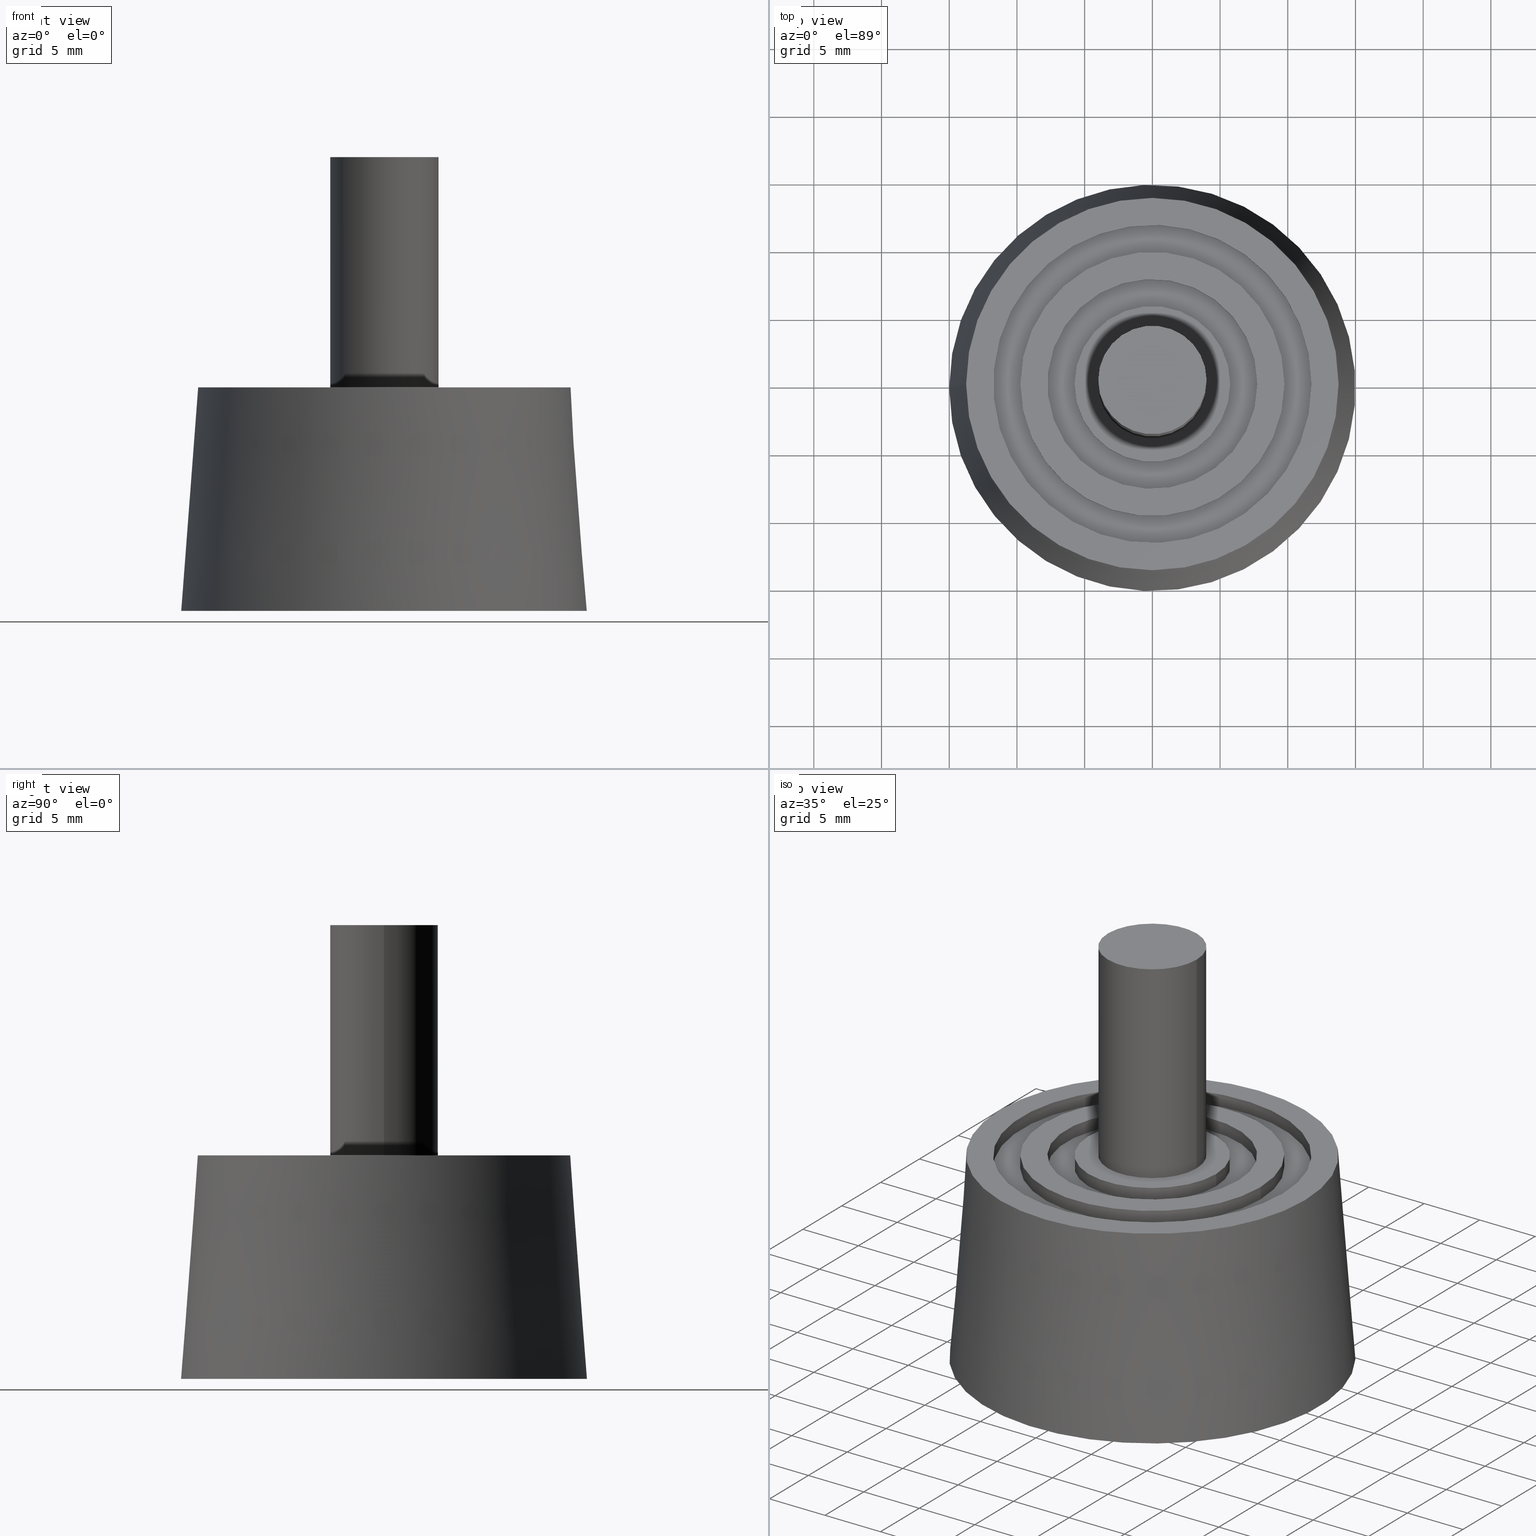
[diagram: canonical four-view strip — front | top / right | iso, engineering-drawing reading convention]
A machine part, canonical four-view strip (front | top / right | iso — engineering-drawing reading convention). The complete STEP part file that produces these views, byte-faithful:
ISO-10303-21;
HEADER;
/* Generated by software containing ST-Developer
 * from STEP Tools, Inc. (www.steptools.com) 
 */

FILE_DESCRIPTION(
/* description */ (''),
/* implementation_level */ '2;1');

FILE_NAME(
/* name */ '\\\\SYNOLOGYNAS\\web\\db2\\PRM8-1\\\X2\B3C4BA74\X0\\\DR_PR
M8-1.stp',
/* time_stamp */ '2023-02-01T16:47:05+09:00',
/* author */ ('user'),
/* organization */ (''),
/* preprocessor_version */ 'ST-DEVELOPER v15.6',
/* originating_system */ 'Autodesk Inventor 2015',
/* authorisation */ '');

FILE_SCHEMA (('AUTOMOTIVE_DESIGN { 1 0 10303 214 3 1 1 }'));
ENDSEC;

DATA;
#10=MECHANICAL_DESIGN_GEOMETRIC_PRESENTATION_REPRESENTATION('',(#13),#469);
#11=SHAPE_REPRESENTATION_RELATIONSHIP('SRR','None',#478,#12);
#12=ADVANCED_BREP_SHAPE_REPRESENTATION($,(#14),#468);
#13=STYLED_ITEM('',(#487),#14);
#14=MANIFOLD_SOLID_BREP('\X2\C194B9ACB4DC\X0\1',#259);
#15=CONICAL_SURFACE('',#305,15.,4.33231398318852);
#16=PLANE('',#264);
#17=PLANE('',#271);
#18=PLANE('',#278);
#19=PLANE('',#282);
#20=PLANE('',#283);
#21=PLANE('',#284);
#22=PLANE('',#292);
#23=PLANE('',#299);
#24=PLANE('',#300);
#25=PLANE('',#302);
#26=PLANE('',#303);
#27=PLANE('',#304);
#28=FACE_BOUND('',#73,.T.);
#29=FACE_BOUND('',#76,.T.);
#30=FACE_BOUND('',#78,.T.);
#31=FACE_BOUND('',#80,.T.);
#32=FACE_BOUND('',#82,.T.);
#33=FACE_BOUND('',#84,.T.);
#34=FACE_BOUND('',#86,.T.);
#35=FACE_BOUND('',#88,.T.);
#36=FACE_BOUND('',#91,.T.);
#37=FACE_BOUND('',#93,.T.);
#38=FACE_BOUND('',#95,.T.);
#39=FACE_BOUND('',#97,.T.);
#40=FACE_BOUND('',#99,.T.);
#41=FACE_BOUND('',#101,.T.);
#42=FACE_BOUND('',#103,.T.);
#43=FACE_BOUND('',#105,.T.);
#44=FACE_BOUND('',#107,.T.);
#45=FACE_BOUND('',#109,.T.);
#46=FACE_BOUND('',#111,.T.);
#47=FACE_BOUND('',#113,.T.);
#48=FACE_BOUND('',#115,.T.);
#49=FACE_OUTER_BOUND('',#72,.T.);
#50=FACE_OUTER_BOUND('',#74,.T.);
#51=FACE_OUTER_BOUND('',#75,.T.);
#52=FACE_OUTER_BOUND('',#77,.T.);
#53=FACE_OUTER_BOUND('',#79,.T.);
#54=FACE_OUTER_BOUND('',#81,.T.);
#55=FACE_OUTER_BOUND('',#83,.T.);
#56=FACE_OUTER_BOUND('',#85,.T.);
#57=FACE_OUTER_BOUND('',#87,.T.);
#58=FACE_OUTER_BOUND('',#89,.T.);
#59=FACE_OUTER_BOUND('',#90,.T.);
#60=FACE_OUTER_BOUND('',#92,.T.);
#61=FACE_OUTER_BOUND('',#94,.T.);
#62=FACE_OUTER_BOUND('',#96,.T.);
#63=FACE_OUTER_BOUND('',#98,.T.);
#64=FACE_OUTER_BOUND('',#100,.T.);
#65=FACE_OUTER_BOUND('',#102,.T.);
#66=FACE_OUTER_BOUND('',#104,.T.);
#67=FACE_OUTER_BOUND('',#106,.T.);
#68=FACE_OUTER_BOUND('',#108,.T.);
#69=FACE_OUTER_BOUND('',#110,.T.);
#70=FACE_OUTER_BOUND('',#112,.T.);
#71=FACE_OUTER_BOUND('',#114,.T.);
#72=EDGE_LOOP('',(#182));
#73=EDGE_LOOP('',(#183));
#74=EDGE_LOOP('',(#184));
#75=EDGE_LOOP('',(#185));
#76=EDGE_LOOP('',(#186));
#77=EDGE_LOOP('',(#187));
#78=EDGE_LOOP('',(#188));
#79=EDGE_LOOP('',(#189));
#80=EDGE_LOOP('',(#190));
#81=EDGE_LOOP('',(#191));
#82=EDGE_LOOP('',(#192));
#83=EDGE_LOOP('',(#193));
#84=EDGE_LOOP('',(#194));
#85=EDGE_LOOP('',(#195));
#86=EDGE_LOOP('',(#196));
#87=EDGE_LOOP('',(#197));
#88=EDGE_LOOP('',(#198));
#89=EDGE_LOOP('',(#199));
#90=EDGE_LOOP('',(#200));
#91=EDGE_LOOP('',(#201));
#92=EDGE_LOOP('',(#202));
#93=EDGE_LOOP('',(#203));
#94=EDGE_LOOP('',(#204));
#95=EDGE_LOOP('',(#205));
#96=EDGE_LOOP('',(#206));
#97=EDGE_LOOP('',(#207));
#98=EDGE_LOOP('',(#208));
#99=EDGE_LOOP('',(#209));
#100=EDGE_LOOP('',(#210));
#101=EDGE_LOOP('',(#211));
#102=EDGE_LOOP('',(#212));
#103=EDGE_LOOP('',(#213));
#104=EDGE_LOOP('',(#214));
#105=EDGE_LOOP('',(#215));
#106=EDGE_LOOP('',(#216));
#107=EDGE_LOOP('',(#217));
#108=EDGE_LOOP('',(#218));
#109=EDGE_LOOP('',(#219));
#110=EDGE_LOOP('',(#220));
#111=EDGE_LOOP('',(#221));
#112=EDGE_LOOP('',(#222));
#113=EDGE_LOOP('',(#223));
#114=EDGE_LOOP('',(#224));
#115=EDGE_LOOP('',(#225));
#116=CIRCLE('',#262,4.);
#117=CIRCLE('',#263,4.);
#118=CIRCLE('',#266,11.25);
#119=CIRCLE('',#267,11.25);
#120=CIRCLE('',#269,13.25);
#121=CIRCLE('',#270,13.25);
#122=CIRCLE('',#273,7.25);
#123=CIRCLE('',#274,7.25);
#124=CIRCLE('',#276,9.25);
#125=CIRCLE('',#277,9.25);
#126=CIRCLE('',#280,5.25);
#127=CIRCLE('',#281,5.25);
#128=CIRCLE('',#285,15.);
#129=CIRCLE('',#287,5.75);
#130=CIRCLE('',#288,5.75);
#131=CIRCLE('',#290,7.75);
#132=CIRCLE('',#291,7.75);
#133=CIRCLE('',#294,9.75);
#134=CIRCLE('',#295,9.75);
#135=CIRCLE('',#297,11.75);
#136=CIRCLE('',#298,11.75);
#137=CIRCLE('',#301,13.75);
#138=VERTEX_POINT('',#400);
#139=VERTEX_POINT('',#402);
#140=VERTEX_POINT('',#406);
#141=VERTEX_POINT('',#408);
#142=VERTEX_POINT('',#411);
#143=VERTEX_POINT('',#413);
#144=VERTEX_POINT('',#417);
#145=VERTEX_POINT('',#419);
#146=VERTEX_POINT('',#422);
#147=VERTEX_POINT('',#424);
#148=VERTEX_POINT('',#428);
#149=VERTEX_POINT('',#430);
#150=VERTEX_POINT('',#435);
#151=VERTEX_POINT('',#438);
#152=VERTEX_POINT('',#440);
#153=VERTEX_POINT('',#443);
#154=VERTEX_POINT('',#445);
#155=VERTEX_POINT('',#449);
#156=VERTEX_POINT('',#451);
#157=VERTEX_POINT('',#454);
#158=VERTEX_POINT('',#456);
#159=VERTEX_POINT('',#460);
#160=EDGE_CURVE('',#138,#138,#116,.T.);
#161=EDGE_CURVE('',#139,#139,#117,.T.);
#162=EDGE_CURVE('',#140,#140,#118,.T.);
#163=EDGE_CURVE('',#141,#141,#119,.T.);
#164=EDGE_CURVE('',#142,#142,#120,.T.);
#165=EDGE_CURVE('',#143,#143,#121,.T.);
#166=EDGE_CURVE('',#144,#144,#122,.T.);
#167=EDGE_CURVE('',#145,#145,#123,.T.);
#168=EDGE_CURVE('',#146,#146,#124,.T.);
#169=EDGE_CURVE('',#147,#147,#125,.T.);
#170=EDGE_CURVE('',#148,#148,#126,.T.);
#171=EDGE_CURVE('',#149,#149,#127,.T.);
#172=EDGE_CURVE('',#150,#150,#128,.T.);
#173=EDGE_CURVE('',#151,#151,#129,.T.);
#174=EDGE_CURVE('',#152,#152,#130,.T.);
#175=EDGE_CURVE('',#153,#153,#131,.T.);
#176=EDGE_CURVE('',#154,#154,#132,.T.);
#177=EDGE_CURVE('',#155,#155,#133,.T.);
#178=EDGE_CURVE('',#156,#156,#134,.T.);
#179=EDGE_CURVE('',#157,#157,#135,.T.);
#180=EDGE_CURVE('',#158,#158,#136,.T.);
#181=EDGE_CURVE('',#159,#159,#137,.T.);
#182=ORIENTED_EDGE('',*,*,#160,.F.);
#183=ORIENTED_EDGE('',*,*,#161,.F.);
#184=ORIENTED_EDGE('',*,*,#160,.T.);
#185=ORIENTED_EDGE('',*,*,#162,.T.);
#186=ORIENTED_EDGE('',*,*,#163,.F.);
#187=ORIENTED_EDGE('',*,*,#164,.T.);
#188=ORIENTED_EDGE('',*,*,#165,.F.);
#189=ORIENTED_EDGE('',*,*,#164,.F.);
#190=ORIENTED_EDGE('',*,*,#162,.F.);
#191=ORIENTED_EDGE('',*,*,#166,.T.);
#192=ORIENTED_EDGE('',*,*,#167,.F.);
#193=ORIENTED_EDGE('',*,*,#168,.T.);
#194=ORIENTED_EDGE('',*,*,#169,.F.);
#195=ORIENTED_EDGE('',*,*,#168,.F.);
#196=ORIENTED_EDGE('',*,*,#166,.F.);
#197=ORIENTED_EDGE('',*,*,#170,.T.);
#198=ORIENTED_EDGE('',*,*,#171,.F.);
#199=ORIENTED_EDGE('',*,*,#170,.F.);
#200=ORIENTED_EDGE('',*,*,#163,.T.);
#201=ORIENTED_EDGE('',*,*,#169,.T.);
#202=ORIENTED_EDGE('',*,*,#172,.F.);
#203=ORIENTED_EDGE('',*,*,#165,.T.);
#204=ORIENTED_EDGE('',*,*,#173,.T.);
#205=ORIENTED_EDGE('',*,*,#174,.F.);
#206=ORIENTED_EDGE('',*,*,#175,.T.);
#207=ORIENTED_EDGE('',*,*,#176,.F.);
#208=ORIENTED_EDGE('',*,*,#175,.F.);
#209=ORIENTED_EDGE('',*,*,#173,.F.);
#210=ORIENTED_EDGE('',*,*,#177,.T.);
#211=ORIENTED_EDGE('',*,*,#178,.F.);
#212=ORIENTED_EDGE('',*,*,#179,.T.);
#213=ORIENTED_EDGE('',*,*,#180,.F.);
#214=ORIENTED_EDGE('',*,*,#179,.F.);
#215=ORIENTED_EDGE('',*,*,#177,.F.);
#216=ORIENTED_EDGE('',*,*,#181,.F.);
#217=ORIENTED_EDGE('',*,*,#180,.T.);
#218=ORIENTED_EDGE('',*,*,#178,.T.);
#219=ORIENTED_EDGE('',*,*,#176,.T.);
#220=ORIENTED_EDGE('',*,*,#174,.T.);
#221=ORIENTED_EDGE('',*,*,#161,.T.);
#222=ORIENTED_EDGE('',*,*,#167,.T.);
#223=ORIENTED_EDGE('',*,*,#171,.T.);
#224=ORIENTED_EDGE('',*,*,#172,.T.);
#225=ORIENTED_EDGE('',*,*,#181,.T.);
#226=CYLINDRICAL_SURFACE('',#261,4.);
#227=CYLINDRICAL_SURFACE('',#265,11.25);
#228=CYLINDRICAL_SURFACE('',#268,13.25);
#229=CYLINDRICAL_SURFACE('',#272,7.25);
#230=CYLINDRICAL_SURFACE('',#275,9.25);
#231=CYLINDRICAL_SURFACE('',#279,5.25);
#232=CYLINDRICAL_SURFACE('',#286,5.75);
#233=CYLINDRICAL_SURFACE('',#289,7.75);
#234=CYLINDRICAL_SURFACE('',#293,9.75);
#235=CYLINDRICAL_SURFACE('',#296,11.75);
#236=ADVANCED_FACE('',(#49,#28),#226,.T.);
#237=ADVANCED_FACE('',(#50),#16,.T.);
#238=ADVANCED_FACE('',(#51,#29),#227,.T.);
#239=ADVANCED_FACE('',(#52,#30),#228,.F.);
#240=ADVANCED_FACE('',(#53,#31),#17,.F.);
#241=ADVANCED_FACE('',(#54,#32),#229,.T.);
#242=ADVANCED_FACE('',(#55,#33),#230,.F.);
#243=ADVANCED_FACE('',(#56,#34),#18,.F.);
#244=ADVANCED_FACE('',(#57,#35),#231,.F.);
#245=ADVANCED_FACE('',(#58),#19,.F.);
#246=ADVANCED_FACE('',(#59,#36),#20,.F.);
#247=ADVANCED_FACE('',(#60,#37),#21,.F.);
#248=ADVANCED_FACE('',(#61,#38),#232,.T.);
#249=ADVANCED_FACE('',(#62,#39),#233,.F.);
#250=ADVANCED_FACE('',(#63,#40),#22,.T.);
#251=ADVANCED_FACE('',(#64,#41),#234,.T.);
#252=ADVANCED_FACE('',(#65,#42),#235,.F.);
#253=ADVANCED_FACE('',(#66,#43),#23,.T.);
#254=ADVANCED_FACE('',(#67,#44),#24,.F.);
#255=ADVANCED_FACE('',(#68,#45),#25,.F.);
#256=ADVANCED_FACE('',(#69,#46),#26,.F.);
#257=ADVANCED_FACE('',(#70,#47),#27,.F.);
#258=ADVANCED_FACE('',(#71,#48),#15,.T.);
#259=CLOSED_SHELL('',(#236,#237,#238,#239,#240,#241,#242,#243,#244,#245,
#246,#247,#248,#249,#250,#251,#252,#253,#254,#255,#256,#257,#258));
#260=AXIS2_PLACEMENT_3D('placement',#398,#306,#307);
#261=AXIS2_PLACEMENT_3D('',#399,#308,#309);
#262=AXIS2_PLACEMENT_3D('',#401,#310,#311);
#263=AXIS2_PLACEMENT_3D('',#403,#312,#313);
#264=AXIS2_PLACEMENT_3D('',#404,#314,#315);
#265=AXIS2_PLACEMENT_3D('',#405,#316,#317);
#266=AXIS2_PLACEMENT_3D('',#407,#318,#319);
#267=AXIS2_PLACEMENT_3D('',#409,#320,#321);
#268=AXIS2_PLACEMENT_3D('',#410,#322,#323);
#269=AXIS2_PLACEMENT_3D('',#412,#324,#325);
#270=AXIS2_PLACEMENT_3D('',#414,#326,#327);
#271=AXIS2_PLACEMENT_3D('',#415,#328,#329);
#272=AXIS2_PLACEMENT_3D('',#416,#330,#331);
#273=AXIS2_PLACEMENT_3D('',#418,#332,#333);
#274=AXIS2_PLACEMENT_3D('',#420,#334,#335);
#275=AXIS2_PLACEMENT_3D('',#421,#336,#337);
#276=AXIS2_PLACEMENT_3D('',#423,#338,#339);
#277=AXIS2_PLACEMENT_3D('',#425,#340,#341);
#278=AXIS2_PLACEMENT_3D('',#426,#342,#343);
#279=AXIS2_PLACEMENT_3D('',#427,#344,#345);
#280=AXIS2_PLACEMENT_3D('',#429,#346,#347);
#281=AXIS2_PLACEMENT_3D('',#431,#348,#349);
#282=AXIS2_PLACEMENT_3D('',#432,#350,#351);
#283=AXIS2_PLACEMENT_3D('',#433,#352,#353);
#284=AXIS2_PLACEMENT_3D('',#434,#354,#355);
#285=AXIS2_PLACEMENT_3D('',#436,#356,#357);
#286=AXIS2_PLACEMENT_3D('',#437,#358,#359);
#287=AXIS2_PLACEMENT_3D('',#439,#360,#361);
#288=AXIS2_PLACEMENT_3D('',#441,#362,#363);
#289=AXIS2_PLACEMENT_3D('',#442,#364,#365);
#290=AXIS2_PLACEMENT_3D('',#444,#366,#367);
#291=AXIS2_PLACEMENT_3D('',#446,#368,#369);
#292=AXIS2_PLACEMENT_3D('',#447,#370,#371);
#293=AXIS2_PLACEMENT_3D('',#448,#372,#373);
#294=AXIS2_PLACEMENT_3D('',#450,#374,#375);
#295=AXIS2_PLACEMENT_3D('',#452,#376,#377);
#296=AXIS2_PLACEMENT_3D('',#453,#378,#379);
#297=AXIS2_PLACEMENT_3D('',#455,#380,#381);
#298=AXIS2_PLACEMENT_3D('',#457,#382,#383);
#299=AXIS2_PLACEMENT_3D('',#458,#384,#385);
#300=AXIS2_PLACEMENT_3D('',#459,#386,#387);
#301=AXIS2_PLACEMENT_3D('',#461,#388,#389);
#302=AXIS2_PLACEMENT_3D('',#462,#390,#391);
#303=AXIS2_PLACEMENT_3D('',#463,#392,#393);
#304=AXIS2_PLACEMENT_3D('',#464,#394,#395);
#305=AXIS2_PLACEMENT_3D('',#465,#396,#397);
#306=DIRECTION('axis',(0.,0.,1.));
#307=DIRECTION('refdir',(1.,0.,0.));
#308=DIRECTION('center_axis',(0.,0.,1.));
#309=DIRECTION('ref_axis',(-1.,0.,0.));
#310=DIRECTION('center_axis',(0.,0.,1.));
#311=DIRECTION('ref_axis',(-1.,0.,0.));
#312=DIRECTION('center_axis',(0.,0.,-1.));
#313=DIRECTION('ref_axis',(-1.,0.,0.));
#314=DIRECTION('center_axis',(0.,0.,1.));
#315=DIRECTION('ref_axis',(1.,0.,0.));
#316=DIRECTION('center_axis',(0.,0.,1.));
#317=DIRECTION('ref_axis',(1.,0.,0.));
#318=DIRECTION('center_axis',(0.,0.,-1.));
#319=DIRECTION('ref_axis',(1.,0.,0.));
#320=DIRECTION('center_axis',(0.,0.,-1.));
#321=DIRECTION('ref_axis',(1.,0.,0.));
#322=DIRECTION('center_axis',(0.,0.,1.));
#323=DIRECTION('ref_axis',(1.,0.,0.));
#324=DIRECTION('center_axis',(0.,0.,1.));
#325=DIRECTION('ref_axis',(1.,0.,0.));
#326=DIRECTION('center_axis',(0.,0.,1.));
#327=DIRECTION('ref_axis',(1.,0.,0.));
#328=DIRECTION('center_axis',(0.,0.,1.));
#329=DIRECTION('ref_axis',(1.,0.,0.));
#330=DIRECTION('center_axis',(0.,0.,1.));
#331=DIRECTION('ref_axis',(1.,0.,0.));
#332=DIRECTION('center_axis',(0.,0.,-1.));
#333=DIRECTION('ref_axis',(1.,0.,0.));
#334=DIRECTION('center_axis',(0.,0.,-1.));
#335=DIRECTION('ref_axis',(1.,0.,0.));
#336=DIRECTION('center_axis',(0.,0.,1.));
#337=DIRECTION('ref_axis',(1.,0.,0.));
#338=DIRECTION('center_axis',(0.,0.,1.));
#339=DIRECTION('ref_axis',(1.,0.,0.));
#340=DIRECTION('center_axis',(0.,0.,1.));
#341=DIRECTION('ref_axis',(1.,0.,0.));
#342=DIRECTION('center_axis',(0.,0.,1.));
#343=DIRECTION('ref_axis',(1.,0.,0.));
#344=DIRECTION('center_axis',(0.,0.,1.));
#345=DIRECTION('ref_axis',(1.,0.,0.));
#346=DIRECTION('center_axis',(0.,0.,1.));
#347=DIRECTION('ref_axis',(1.,0.,0.));
#348=DIRECTION('center_axis',(0.,0.,1.));
#349=DIRECTION('ref_axis',(1.,0.,0.));
#350=DIRECTION('center_axis',(0.,0.,1.));
#351=DIRECTION('ref_axis',(1.,0.,0.));
#352=DIRECTION('center_axis',(0.,0.,1.));
#353=DIRECTION('ref_axis',(1.,0.,0.));
#354=DIRECTION('center_axis',(0.,0.,1.));
#355=DIRECTION('ref_axis',(1.,0.,0.));
#356=DIRECTION('center_axis',(0.,0.,1.));
#357=DIRECTION('ref_axis',(-1.,0.,0.));
#358=DIRECTION('center_axis',(0.,0.,-1.));
#359=DIRECTION('ref_axis',(-1.,0.,0.));
#360=DIRECTION('center_axis',(0.,0.,1.));
#361=DIRECTION('ref_axis',(-1.,0.,0.));
#362=DIRECTION('center_axis',(0.,0.,1.));
#363=DIRECTION('ref_axis',(-1.,0.,0.));
#364=DIRECTION('center_axis',(0.,0.,-1.));
#365=DIRECTION('ref_axis',(-1.,0.,0.));
#366=DIRECTION('center_axis',(0.,0.,-1.));
#367=DIRECTION('ref_axis',(-1.,0.,0.));
#368=DIRECTION('center_axis',(0.,0.,-1.));
#369=DIRECTION('ref_axis',(-1.,0.,0.));
#370=DIRECTION('center_axis',(0.,0.,1.));
#371=DIRECTION('ref_axis',(1.,0.,0.));
#372=DIRECTION('center_axis',(0.,0.,-1.));
#373=DIRECTION('ref_axis',(-1.,0.,0.));
#374=DIRECTION('center_axis',(0.,0.,1.));
#375=DIRECTION('ref_axis',(-1.,0.,0.));
#376=DIRECTION('center_axis',(0.,0.,1.));
#377=DIRECTION('ref_axis',(-1.,0.,0.));
#378=DIRECTION('center_axis',(0.,0.,-1.));
#379=DIRECTION('ref_axis',(-1.,0.,0.));
#380=DIRECTION('center_axis',(0.,0.,-1.));
#381=DIRECTION('ref_axis',(-1.,0.,0.));
#382=DIRECTION('center_axis',(0.,0.,-1.));
#383=DIRECTION('ref_axis',(-1.,0.,0.));
#384=DIRECTION('center_axis',(0.,0.,1.));
#385=DIRECTION('ref_axis',(1.,0.,0.));
#386=DIRECTION('center_axis',(0.,0.,-1.));
#387=DIRECTION('ref_axis',(-1.,0.,0.));
#388=DIRECTION('center_axis',(0.,0.,-1.));
#389=DIRECTION('ref_axis',(-1.,0.,0.));
#390=DIRECTION('center_axis',(0.,0.,-1.));
#391=DIRECTION('ref_axis',(-1.,0.,0.));
#392=DIRECTION('center_axis',(0.,0.,-1.));
#393=DIRECTION('ref_axis',(-1.,0.,0.));
#394=DIRECTION('center_axis',(0.,0.,1.));
#395=DIRECTION('ref_axis',(1.,0.,0.));
#396=DIRECTION('center_axis',(0.,0.,-1.));
#397=DIRECTION('ref_axis',(-1.,0.,0.));
#398=CARTESIAN_POINT('',(0.,0.,0.));
#399=CARTESIAN_POINT('Origin',(0.,0.,16.5));
#400=CARTESIAN_POINT('',(4.,4.89858719658941E-16,33.5));
#401=CARTESIAN_POINT('Origin',(0.,0.,33.5));
#402=CARTESIAN_POINT('',(4.,4.89858719658941E-16,16.5));
#403=CARTESIAN_POINT('Origin',(0.,0.,16.5));
#404=CARTESIAN_POINT('Origin',(-2.72118023435153E-16,0.,33.5));
#405=CARTESIAN_POINT('Origin',(0.,0.,0.));
#406=CARTESIAN_POINT('',(-11.25,1.37772764904077E-15,1.));
#407=CARTESIAN_POINT('Origin',(0.,0.,1.));
#408=CARTESIAN_POINT('',(-11.25,1.37772764904077E-15,0.));
#409=CARTESIAN_POINT('Origin',(0.,0.,0.));
#410=CARTESIAN_POINT('Origin',(0.,0.,0.));
#411=CARTESIAN_POINT('',(-13.25,1.62265700887024E-15,1.));
#412=CARTESIAN_POINT('Origin',(0.,0.,1.));
#413=CARTESIAN_POINT('',(-13.25,1.62265700887024E-15,0.));
#414=CARTESIAN_POINT('Origin',(0.,0.,0.));
#415=CARTESIAN_POINT('Origin',(1.35221417405854E-16,0.,1.));
#416=CARTESIAN_POINT('Origin',(0.,0.,0.));
#417=CARTESIAN_POINT('',(-7.25,8.87868929381831E-16,1.));
#418=CARTESIAN_POINT('Origin',(0.,0.,1.));
#419=CARTESIAN_POINT('',(-7.25,8.87868929381831E-16,0.));
#420=CARTESIAN_POINT('Origin',(0.,0.,0.));
#421=CARTESIAN_POINT('Origin',(0.,0.,0.));
#422=CARTESIAN_POINT('',(-9.25,1.1327982892113E-15,1.));
#423=CARTESIAN_POINT('Origin',(0.,0.,1.));
#424=CARTESIAN_POINT('',(-9.25,1.1327982892113E-15,0.));
#425=CARTESIAN_POINT('Origin',(0.,0.,0.));
#426=CARTESIAN_POINT('Origin',(4.94480226668566E-16,-2.00040184617145E-16,
1.));
#427=CARTESIAN_POINT('Origin',(0.,0.,0.));
#428=CARTESIAN_POINT('',(-5.25,6.42939569552361E-16,1.));
#429=CARTESIAN_POINT('Origin',(0.,0.,1.));
#430=CARTESIAN_POINT('',(-5.25,6.42939569552361E-16,0.));
#431=CARTESIAN_POINT('Origin',(0.,0.,0.));
#432=CARTESIAN_POINT('Origin',(2.29804174387325E-16,8.8112938462314E-17,
1.));
#433=CARTESIAN_POINT('Origin',(0.,0.,0.));
#434=CARTESIAN_POINT('Origin',(0.,0.,0.));
#435=CARTESIAN_POINT('',(-15.,0.,0.));
#436=CARTESIAN_POINT('Origin',(0.,0.,0.));
#437=CARTESIAN_POINT('Origin',(0.,0.,16.5));
#438=CARTESIAN_POINT('',(5.75,7.04171909509728E-16,15.5));
#439=CARTESIAN_POINT('Origin',(0.,0.,15.5));
#440=CARTESIAN_POINT('',(5.75,7.04171909509728E-16,16.5));
#441=CARTESIAN_POINT('Origin',(0.,0.,16.5));
#442=CARTESIAN_POINT('Origin',(0.,0.,16.5));
#443=CARTESIAN_POINT('',(7.75,9.49101269339199E-16,15.5));
#444=CARTESIAN_POINT('Origin',(0.,0.,15.5));
#445=CARTESIAN_POINT('',(7.75,9.49101269339199E-16,16.5));
#446=CARTESIAN_POINT('Origin',(0.,0.,16.5));
#447=CARTESIAN_POINT('Origin',(-5.56607051853603E-16,0.,15.5));
#448=CARTESIAN_POINT('Origin',(0.,0.,16.5));
#449=CARTESIAN_POINT('',(9.75,1.19403062916867E-15,15.5));
#450=CARTESIAN_POINT('Origin',(0.,0.,15.5));
#451=CARTESIAN_POINT('',(9.75,1.19403062916867E-15,16.5));
#452=CARTESIAN_POINT('Origin',(0.,0.,16.5));
#453=CARTESIAN_POINT('Origin',(0.,0.,16.5));
#454=CARTESIAN_POINT('',(11.75,1.43895998899814E-15,15.5));
#455=CARTESIAN_POINT('Origin',(0.,0.,15.5));
#456=CARTESIAN_POINT('',(11.75,1.43895998899814E-15,16.5));
#457=CARTESIAN_POINT('Origin',(0.,0.,16.5));
#458=CARTESIAN_POINT('Origin',(-7.4982710525348E-16,0.,15.5));
#459=CARTESIAN_POINT('Origin',(0.,0.,16.5));
#460=CARTESIAN_POINT('',(-13.75,0.,16.5));
#461=CARTESIAN_POINT('Origin',(0.,0.,16.5));
#462=CARTESIAN_POINT('Origin',(0.,0.,16.5));
#463=CARTESIAN_POINT('Origin',(0.,0.,16.5));
#464=CARTESIAN_POINT('Origin',(0.,0.,0.));
#465=CARTESIAN_POINT('Origin',(0.,0.,0.));
#466=UNCERTAINTY_MEASURE_WITH_UNIT(LENGTH_MEASURE(0.01),#470,
'DISTANCE_ACCURACY_VALUE',
'Maximum model space distance between geometric entities at asserted c
onnectivities');
#467=UNCERTAINTY_MEASURE_WITH_UNIT(LENGTH_MEASURE(1.E-6),#470,
'DISTANCE_ACCURACY_VALUE',
'Maximum model space distance between geometric entities at asserted c
onnectivities');
#468=(
GEOMETRIC_REPRESENTATION_CONTEXT(3)
GLOBAL_UNCERTAINTY_ASSIGNED_CONTEXT((#466))
GLOBAL_UNIT_ASSIGNED_CONTEXT((#470,#473,#471))
REPRESENTATION_CONTEXT('','3D')
);
#469=(
GEOMETRIC_REPRESENTATION_CONTEXT(3)
GLOBAL_UNCERTAINTY_ASSIGNED_CONTEXT((#467))
GLOBAL_UNIT_ASSIGNED_CONTEXT((#470,#473,#471))
REPRESENTATION_CONTEXT('','3D')
);
#470=(
LENGTH_UNIT()
NAMED_UNIT(*)
SI_UNIT(.MILLI.,.METRE.)
);
#471=(
NAMED_UNIT(*)
SI_UNIT($,.STERADIAN.)
SOLID_ANGLE_UNIT()
);
#472=DIMENSIONAL_EXPONENTS(0.,0.,0.,0.,0.,0.,0.);
#473=(
CONVERSION_BASED_UNIT('degree',#475)
NAMED_UNIT(#472)
PLANE_ANGLE_UNIT()
);
#474=(
NAMED_UNIT(*)
PLANE_ANGLE_UNIT()
SI_UNIT($,.RADIAN.)
);
#475=PLANE_ANGLE_MEASURE_WITH_UNIT(PLANE_ANGLE_MEASURE(0.01745329252),#474);
#476=SHAPE_DEFINITION_REPRESENTATION(#477,#478);
#477=PRODUCT_DEFINITION_SHAPE('',$,#480);
#478=SHAPE_REPRESENTATION('',(#260),#468);
#479=PRODUCT_DEFINITION_CONTEXT('part definition',#484,'design');
#480=PRODUCT_DEFINITION('DR_PRM8-1','DR_PRM8-1',#481,#479);
#481=PRODUCT_DEFINITION_FORMATION('',$,#486);
#482=PRODUCT_RELATED_PRODUCT_CATEGORY('DR_PRM8-1','DR_PRM8-1',(#486));
#483=APPLICATION_PROTOCOL_DEFINITION('international standard',
'automotive_design',2009,#484);
#484=APPLICATION_CONTEXT(
'Core Data for Automotive Mechanical Design Process');
#485=PRODUCT_CONTEXT('part definition',#484,'mechanical');
#486=PRODUCT('DR_PRM8-1','DR_PRM8-1',$,(#485));
#487=PRESENTATION_STYLE_ASSIGNMENT((#488));
#488=SURFACE_STYLE_USAGE(.BOTH.,#489);
#489=SURFACE_SIDE_STYLE($,(#490));
#490=SURFACE_STYLE_FILL_AREA(#491);
#491=FILL_AREA_STYLE($,(#492));
#492=FILL_AREA_STYLE_COLOUR($,#493);
#493=COLOUR_RGB('',1.,1.,1.);
ENDSEC;
END-ISO-10303-21;
